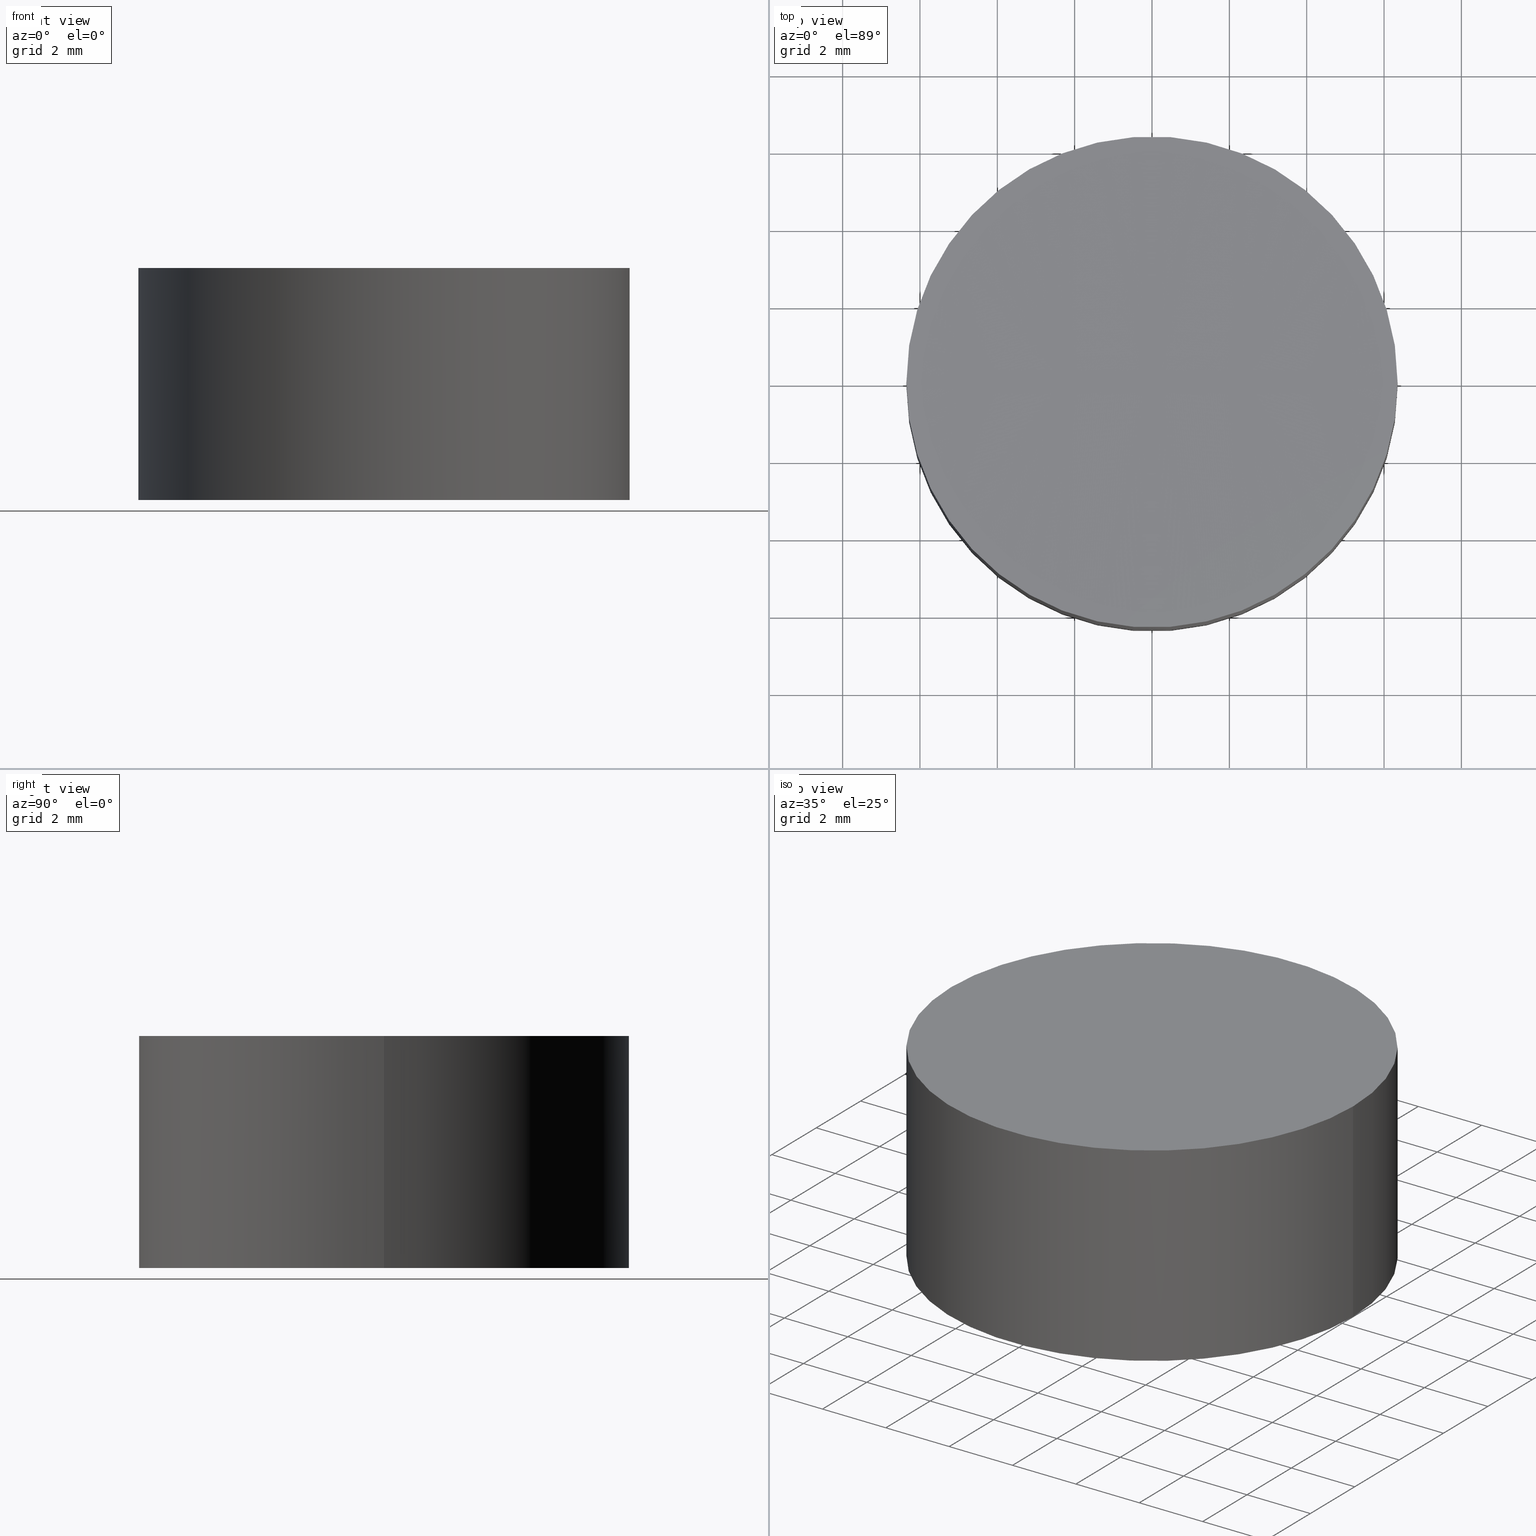
[diagram: canonical four-view strip — front | top / right | iso, engineering-drawing reading convention]
A machine part, canonical four-view strip (front | top / right | iso — engineering-drawing reading convention). The complete STEP part file that produces these views, byte-faithful:
ISO-10303-21;
HEADER;
FILE_DESCRIPTION (( 'STEP AP203' ),
    '1' );
FILE_NAME ('010-1140T6_UVFS_PCV_window.STEP',
    '2021-02-25T10:39:41',
    ( '' ),
    ( '' ),
    'SwSTEP 2.0',
    'SolidWorks 2019',
    '' );
FILE_SCHEMA (( 'CONFIG_CONTROL_DESIGN' ));
ENDSEC;

DATA;
#1 = CIRCLE ( 'NONE', #195, 6.349999999999999645 ) ;
#2 = CARTESIAN_POINT ( 'NONE',  ( -6.349999999883296553, 0.000000000000000000, 5.999999999999783284 ) ) ;
#3 = CARTESIAN_POINT ( 'NONE',  ( 0.000000000000000000, 0.000000000000000000, 6.000000000000000000 ) ) ;
#4 = CC_DESIGN_PERSON_AND_ORGANIZATION_ASSIGNMENT ( #125, #192, ( #82 ) ) ;
#5 = COORDINATED_UNIVERSAL_TIME_OFFSET ( 2, 0, .AHEAD. ) ;
#6 = CARTESIAN_POINT ( 'NONE',  ( 6.349999999999999645, 7.776507174585692163E-16, 6.000000000000000000 ) ) ;
#7 = APPROVAL_PERSON_ORGANIZATION ( #52, #109, #172 ) ;
#8 = APPROVAL_DATE_TIME ( #46, #29 ) ;
#9 = DIRECTION ( 'NONE',  ( 0.000000000000000000, 0.000000000000000000, 1.000000000000000000 ) ) ;
#10 = EDGE_CURVE ( 'NONE', #116, #66, #35, .T. ) ;
#11 = CIRCLE ( 'NONE', #165, 4000.000000000000000 ) ;
#12 = CC_DESIGN_DATE_AND_TIME_ASSIGNMENT ( #108, #193, ( #107 ) ) ;
#13 = ORIENTED_EDGE ( 'NONE', *, *, #95, .T. ) ;
#14 = CC_DESIGN_PERSON_AND_ORGANIZATION_ASSIGNMENT ( #139, #39, ( #107 ) ) ;
#15 = CC_DESIGN_APPROVAL ( #79, ( #183 ) ) ;
#16 = DIRECTION ( 'NONE',  ( -0.000000000000000000, -0.000000000000000000, -1.000000000000000000 ) ) ;
#17 = CIRCLE ( 'NONE', #44, 6.349999999883787716 ) ;
#18 = FACE_OUTER_BOUND ( 'NONE', #30, .T. ) ;
#19 = ADVANCED_FACE ( 'NONE', ( #34 ), #33, .T. ) ;
#20 = CALENDAR_DATE ( 2021, 25, 2 ) ;
#21 = CARTESIAN_POINT ( 'NONE',  ( 4.917941054394248113E-13, 0.000000000000000000, 4005.994959684324385 ) ) ;
#22 = APPROVAL_STATUS ( 'not_yet_approved' ) ;
#23 = DIRECTION ( 'NONE',  ( 1.000000000000000000, 0.000000000000000000, 0.000000000000000000 ) ) ;
#24 = CIRCLE ( 'NONE', #104, 6.349999999883787716 ) ;
#25 = DIRECTION ( 'NONE',  ( 1.000000000000000000, 0.000000000000000000, 0.000000000000000000 ) ) ;
#26 = COORDINATED_UNIVERSAL_TIME_OFFSET ( 2, 0, .AHEAD. ) ;
#27 = CC_DESIGN_PERSON_AND_ORGANIZATION_ASSIGNMENT ( #177, #141, ( #183 ) ) ;
#28 = PERSON_AND_ORGANIZATION ( #119, #70 ) ;
#29 = APPROVAL ( #143, 'UNSPECIFIED' ) ;
#30 = EDGE_LOOP ( 'NONE', ( #72, #48, #100 ) ) ;
#31 = VERTEX_POINT ( 'NONE', #126 ) ;
#32 = LOCAL_TIME ( 12, 39, 41.00000000000000000, #5 ) ;
#33 = CYLINDRICAL_SURFACE ( 'NONE', #86, 6.349999999999999645 ) ;
#34 = FACE_OUTER_BOUND ( 'NONE', #197, .T. ) ;
#35 = LINE ( 'NONE', #90, #137 ) ;
#36 = APPROVAL_DATE_TIME ( #80, #79 ) ;
#37 = CIRCLE ( 'NONE', #106, 4000.000000000000000 ) ;
#38 = SPHERICAL_SURFACE ( 'NONE', #176, 4000.000000000000000 ) ;
#39 = PERSON_AND_ORGANIZATION_ROLE ( 'creator' ) ;
#40 = DIRECTION ( 'NONE',  ( 0.000000000000000000, 0.000000000000000000, 1.000000000000000000 ) ) ;
#41 = PERSON_AND_ORGANIZATION_ROLE ( 'design_supplier' ) ;
#42 = APPLICATION_PROTOCOL_DEFINITION ( 'international standard', 'config_control_design', 1994, #71 ) ;
#43 = APPLICATION_PROTOCOL_DEFINITION ( 'international standard', 'config_control_design', 1994, #74 ) ;
#44 = AXIS2_PLACEMENT_3D ( 'NONE', #81, #114, #130 ) ;
#45 = CARTESIAN_POINT ( 'NONE',  ( 7.367234652688955115E-13, 0.000000000000000000, 5.994959684324285831 ) ) ;
#46 = DATE_AND_TIME ( #54, #133 ) ;
#47 = ORIENTED_EDGE ( 'NONE', *, *, #180, .F. ) ;
#48 = ORIENTED_EDGE ( 'NONE', *, *, #182, .F. ) ;
#49 = ORIENTED_EDGE ( 'NONE', *, *, #182, .T. ) ;
#50 = LINE ( 'NONE', #6, #148 ) ;
#51 = DIRECTION ( 'NONE',  ( 0.000000000000000000, 1.000000000000000000, -0.000000000000000000 ) ) ;
#52 = PERSON_AND_ORGANIZATION ( #119, #70 ) ;
#53 = DIRECTION ( 'NONE',  ( -0.000000000000000000, -0.000000000000000000, -1.000000000000000000 ) ) ;
#54 = CALENDAR_DATE ( 2021, 25, 2 ) ;
#55 = ORIENTED_EDGE ( 'NONE', *, *, #146, .T. ) ;
#56 =( NAMED_UNIT ( * ) SI_UNIT ( $, .STERADIAN. ) SOLID_ANGLE_UNIT ( ) );
#57 = APPROVAL_ROLE ( '' ) ;
#58 = ORIENTED_EDGE ( 'NONE', *, *, #131, .F. ) ;
#59 = ADVANCED_FACE ( 'NONE', ( #87 ), #152, .T. ) ;
#60 = CIRCLE ( 'NONE', #92, 6.349999999999999645 ) ;
#61 = PLANE ( 'NONE',  #76 ) ;
#62 = CC_DESIGN_SECURITY_CLASSIFICATION ( #183, ( #82 ) ) ;
#63 = AXIS2_PLACEMENT_3D ( 'NONE', #3, #157, #123 ) ;
#64 = DIRECTION ( 'NONE',  ( 0.000000000000000000, -1.000000000000000000, -0.000000000000000000 ) ) ;
#65 = DIRECTION ( 'NONE',  ( 1.000000000000000000, 1.224646799147353207E-16, 0.000000000000000000 ) ) ;
#66 = VERTEX_POINT ( 'NONE', #168 ) ;
#67 = EDGE_CURVE ( 'NONE', #66, #31, #60, .T. ) ;
#68 = COORDINATED_UNIVERSAL_TIME_OFFSET ( 2, 0, .AHEAD. ) ;
#69 = PERSON_AND_ORGANIZATION_ROLE ( 'design_owner' ) ;
#70 = ORGANIZATION ( 'UNSPECIFIED', 'UNSPECIFIED', '' ) ;
#71 = APPLICATION_CONTEXT ( 'configuration controlled 3d designs of mechanical parts and assemblies' ) ;
#72 = ORIENTED_EDGE ( 'NONE', *, *, #95, .F. ) ;
#73 = CARTESIAN_POINT ( 'NONE',  ( 0.000000000000000000, 0.000000000000000000, 0.000000000000000000 ) ) ;
#74 = APPLICATION_CONTEXT ( 'configuration controlled 3d designs of mechanical parts and assemblies' ) ;
#75 = CARTESIAN_POINT ( 'NONE',  ( 0.000000000000000000, 0.000000000000000000, 6.000000000000000000 ) ) ;
#76 = AXIS2_PLACEMENT_3D ( 'NONE', #173, #153, #140 ) ;
#77 = APPROVAL_ROLE ( '' ) ;
#78 = DIRECTION ( 'NONE',  ( -0.000000000000000000, -0.000000000000000000, -1.000000000000000000 ) ) ;
#79 = APPROVAL ( #22, 'UNSPECIFIED' ) ;
#80 = DATE_AND_TIME ( #97, #175 ) ;
#81 = CARTESIAN_POINT ( 'NONE',  ( 4.917941054394248113E-13, 0.000000000000000000, 5.999999999999783284 ) ) ;
#82 = PRODUCT_DEFINITION_FORMATION_WITH_SPECIFIED_SOURCE ( 'ANY', '', #103, .NOT_KNOWN. ) ;
#83 = DIRECTION ( 'NONE',  ( -0.000000000000000000, -0.000000000000000000, -1.000000000000000000 ) ) ;
#84 =( GEOMETRIC_REPRESENTATION_CONTEXT ( 3 ) GLOBAL_UNCERTAINTY_ASSIGNED_CONTEXT ( ( #129 ) ) GLOBAL_UNIT_ASSIGNED_CONTEXT ( ( #145, #174, #56 ) ) REPRESENTATION_CONTEXT ( 'NONE', 'WORKASPACE' ) );
#85 = ADVANCED_FACE ( 'NONE', ( #18 ), #38, .F. ) ;
#86 = AXIS2_PLACEMENT_3D ( 'NONE', #75, #78, #124 ) ;
#87 = FACE_OUTER_BOUND ( 'NONE', #196, .T. ) ;
#88 = ADVANCED_FACE ( 'NONE', ( #199 ), #94, .F. ) ;
#89 = DIRECTION ( 'NONE',  ( 0.000000000000000000, 0.000000000000000000, 1.000000000000000000 ) ) ;
#90 = CARTESIAN_POINT ( 'NONE',  ( -6.349999999999999645, 0.000000000000000000, 6.000000000000000000 ) ) ;
#91 = LOCAL_TIME ( 12, 39, 41.00000000000000000, #96 ) ;
#92 = AXIS2_PLACEMENT_3D ( 'NONE', #73, #135, #122 ) ;
#93 = ADVANCED_BREP_SHAPE_REPRESENTATION ( '010-1140T6_UVFS_PCV_window', ( #132, #154 ), #84 ) ;
#94 = SPHERICAL_SURFACE ( 'NONE', #198, 4000.000000000000000 ) ;
#95 = EDGE_CURVE ( 'NONE', #116, #181, #11, .T. ) ;
#96 = COORDINATED_UNIVERSAL_TIME_OFFSET ( 2, 0, .AHEAD. ) ;
#97 = CALENDAR_DATE ( 2021, 25, 2 ) ;
#98 = CARTESIAN_POINT ( 'NONE',  ( 4.917941054394248113E-13, 0.000000000000000000, 5.999999999999783284 ) ) ;
#99 = DATE_AND_TIME ( #156, #91 ) ;
#100 = ORIENTED_EDGE ( 'NONE', *, *, #131, .T. ) ;
#101 = ORIENTED_EDGE ( 'NONE', *, *, #67, .F. ) ;
#102 = CC_DESIGN_DATE_AND_TIME_ASSIGNMENT ( #99, #158, ( #183 ) ) ;
#103 = PRODUCT ( '010-1140T6_UVFS_PCV_window', '010-1140T6_UVFS_PCV_window', '', ( #162 ) ) ;
#104 = AXIS2_PLACEMENT_3D ( 'NONE', #98, #83, #23 ) ;
#105 = ORIENTED_EDGE ( 'NONE', *, *, #180, .T. ) ;
#106 = AXIS2_PLACEMENT_3D ( 'NONE', #184, #51, #89 ) ;
#107 = PRODUCT_DEFINITION ( 'UNKNOWN', '', #82, #147 ) ;
#108 = DATE_AND_TIME ( #127, #32 ) ;
#109 = APPROVAL ( #112, 'UNSPECIFIED' ) ;
#110 = CARTESIAN_POINT ( 'NONE',  ( 0.000000000000000000, 0.000000000000000000, 0.000000000000000000 ) ) ;
#111 = PERSON_AND_ORGANIZATION ( #119, #70 ) ;
#112 = APPROVAL_STATUS ( 'not_yet_approved' ) ;
#113 = SHAPE_DEFINITION_REPRESENTATION ( #200, #93 ) ;
#114 = DIRECTION ( 'NONE',  ( -0.000000000000000000, -0.000000000000000000, -1.000000000000000000 ) ) ;
#115 = APPROVAL_DATE_TIME ( #187, #109 ) ;
#116 = VERTEX_POINT ( 'NONE', #2 ) ;
#117 = PRODUCT_RELATED_PRODUCT_CATEGORY ( 'detail', '', ( #103 ) ) ;
#118 = CC_DESIGN_APPROVAL ( #109, ( #107 ) ) ;
#119 = PERSON ( 'UNSPECIFIED', 'UNSPECIFIED', 'UNSPECIFIED', ('UNSPECIFIED'), ('UNSPECIFIED'), ('UNSPECIFIED') ) ;
#120 = ADVANCED_FACE ( 'NONE', ( #138 ), #61, .F. ) ;
#121 = DIRECTION ( 'NONE',  ( 1.224646799147353207E-16, -1.000000000000000000, 0.000000000000000000 ) ) ;
#122 = DIRECTION ( 'NONE',  ( 1.000000000000000000, 0.000000000000000000, 0.000000000000000000 ) ) ;
#123 = DIRECTION ( 'NONE',  ( -1.000000000000000000, 0.000000000000000000, 0.000000000000000000 ) ) ;
#124 = DIRECTION ( 'NONE',  ( -1.000000000000000000, 0.000000000000000000, 0.000000000000000000 ) ) ;
#125 = PERSON_AND_ORGANIZATION ( #119, #70 ) ;
#126 = CARTESIAN_POINT ( 'NONE',  ( 6.349999999999999645, 7.776507174585692163E-16, 0.000000000000000000 ) ) ;
#127 = CALENDAR_DATE ( 2021, 25, 2 ) ;
#128 = CARTESIAN_POINT ( 'NONE',  ( 0.000000000000000000, 0.000000000000000000, 0.000000000000000000 ) ) ;
#129 = UNCERTAINTY_MEASURE_WITH_UNIT (LENGTH_MEASURE( 1.000000000000000082E-05 ), #145, 'distance_accuracy_value', 'NONE');
#130 = DIRECTION ( 'NONE',  ( 1.000000000000000000, 0.000000000000000000, 0.000000000000000000 ) ) ;
#131 = EDGE_CURVE ( 'NONE', #178, #181, #37, .T. ) ;
#132 = MANIFOLD_SOLID_BREP ( 'Cut-Revolve1', #166 ) ;
#133 = LOCAL_TIME ( 12, 39, 41.00000000000000000, #170 ) ;
#134 = EDGE_LOOP ( 'NONE', ( #47, #13, #58 ) ) ;
#135 = DIRECTION ( 'NONE',  ( 0.000000000000000000, 0.000000000000000000, 1.000000000000000000 ) ) ;
#136 = CARTESIAN_POINT ( 'NONE',  ( 4.917941054394248113E-13, 0.000000000000000000, 4005.994959684324385 ) ) ;
#137 = VECTOR ( 'NONE', #16, 1000.000000000000000 ) ;
#138 = FACE_OUTER_BOUND ( 'NONE', #155, .T. ) ;
#139 = PERSON_AND_ORGANIZATION ( #119, #70 ) ;
#140 = DIRECTION ( 'NONE',  ( 1.000000000000000000, 0.000000000000000000, -0.000000000000000000 ) ) ;
#141 = PERSON_AND_ORGANIZATION_ROLE ( 'classification_officer' ) ;
#142 = APPROVAL_PERSON_ORGANIZATION ( #189, #29, #77 ) ;
#143 = APPROVAL_STATUS ( 'not_yet_approved' ) ;
#144 = SECURITY_CLASSIFICATION_LEVEL ( 'unclassified' ) ;
#145 =( LENGTH_UNIT ( ) NAMED_UNIT ( * ) SI_UNIT ( .MILLI., .METRE. ) );
#146 = EDGE_CURVE ( 'NONE', #178, #31, #50, .T. ) ;
#147 = DESIGN_CONTEXT ( 'detailed design', #74, 'design' ) ;
#148 = VECTOR ( 'NONE', #53, 1000.000000000000000 ) ;
#149 = APPROVAL_PERSON_ORGANIZATION ( #28, #79, #57 ) ;
#150 = LOCAL_TIME ( 12, 39, 41.00000000000000000, #26 ) ;
#151 = EDGE_CURVE ( 'NONE', #31, #66, #1, .T. ) ;
#152 = CYLINDRICAL_SURFACE ( 'NONE', #63, 6.349999999999999645 ) ;
#153 = DIRECTION ( 'NONE',  ( 0.000000000000000000, 0.000000000000000000, 1.000000000000000000 ) ) ;
#154 = AXIS2_PLACEMENT_3D ( 'NONE', #128, #9, #25 ) ;
#155 = EDGE_LOOP ( 'NONE', ( #101, #167 ) ) ;
#156 = CALENDAR_DATE ( 2021, 25, 2 ) ;
#157 = DIRECTION ( 'NONE',  ( -0.000000000000000000, -0.000000000000000000, -1.000000000000000000 ) ) ;
#158 = DATE_TIME_ROLE ( 'classification_date' ) ;
#159 = DIRECTION ( 'NONE',  ( 1.000000000000000000, 0.000000000000000000, 0.000000000000000000 ) ) ;
#160 = PERSON_AND_ORGANIZATION ( #119, #70 ) ;
#161 = CC_DESIGN_APPROVAL ( #29, ( #82 ) ) ;
#162 = MECHANICAL_CONTEXT ( 'NONE', #71, 'mechanical' ) ;
#163 = ORIENTED_EDGE ( 'NONE', *, *, #10, .F. ) ;
#164 = ORIENTED_EDGE ( 'NONE', *, *, #146, .F. ) ;
#165 = AXIS2_PLACEMENT_3D ( 'NONE', #186, #121, #65 ) ;
#166 = CLOSED_SHELL ( 'NONE', ( #88, #59, #19, #120, #85 ) ) ;
#167 = ORIENTED_EDGE ( 'NONE', *, *, #151, .F. ) ;
#168 = CARTESIAN_POINT ( 'NONE',  ( -6.349999999999999645, 0.000000000000000000, 0.000000000000000000 ) ) ;
#169 = ORIENTED_EDGE ( 'NONE', *, *, #67, .T. ) ;
#170 = COORDINATED_UNIVERSAL_TIME_OFFSET ( 2, 0, .AHEAD. ) ;
#171 = DIRECTION ( 'NONE',  ( 1.000000000000000000, 0.000000000000000000, 0.000000000000000000 ) ) ;
#172 = APPROVAL_ROLE ( '' ) ;
#173 = CARTESIAN_POINT ( 'NONE',  ( 0.000000000000000000, 0.000000000000000000, 0.000000000000000000 ) ) ;
#174 =( NAMED_UNIT ( * ) PLANE_ANGLE_UNIT ( ) SI_UNIT ( $, .RADIAN. ) );
#175 = LOCAL_TIME ( 12, 39, 41.00000000000000000, #68 ) ;
#176 = AXIS2_PLACEMENT_3D ( 'NONE', #136, #201, #159 ) ;
#177 = PERSON_AND_ORGANIZATION ( #119, #70 ) ;
#178 = VERTEX_POINT ( 'NONE', #194 ) ;
#179 = ORIENTED_EDGE ( 'NONE', *, *, #10, .T. ) ;
#180 = EDGE_CURVE ( 'NONE', #116, #178, #24, .T. ) ;
#181 = VERTEX_POINT ( 'NONE', #45 ) ;
#182 = EDGE_CURVE ( 'NONE', #178, #116, #17, .T. ) ;
#183 = SECURITY_CLASSIFICATION ( '', '', #144 ) ;
#184 = CARTESIAN_POINT ( 'NONE',  ( 4.917941054394248113E-13, 0.000000000000000000, 4005.994959684324385 ) ) ;
#185 = CC_DESIGN_PERSON_AND_ORGANIZATION_ASSIGNMENT ( #160, #69, ( #103 ) ) ;
#186 = CARTESIAN_POINT ( 'NONE',  ( 4.917941054394248113E-13, 0.000000000000000000, 4005.994959684324385 ) ) ;
#187 = DATE_AND_TIME ( #20, #150 ) ;
#188 = ORIENTED_EDGE ( 'NONE', *, *, #151, .T. ) ;
#189 = PERSON_AND_ORGANIZATION ( #119, #70 ) ;
#190 = CC_DESIGN_PERSON_AND_ORGANIZATION_ASSIGNMENT ( #111, #41, ( #82 ) ) ;
#191 = DIRECTION ( 'NONE',  ( 1.000000000000000000, 0.000000000000000000, 0.000000000000000000 ) ) ;
#192 = PERSON_AND_ORGANIZATION_ROLE ( 'creator' ) ;
#193 = DATE_TIME_ROLE ( 'creation_date' ) ;
#194 = CARTESIAN_POINT ( 'NONE',  ( 6.349999999884279767, 7.776507174514834704E-16, 5.999999999999783284 ) ) ;
#195 = AXIS2_PLACEMENT_3D ( 'NONE', #110, #40, #191 ) ;
#196 = EDGE_LOOP ( 'NONE', ( #105, #55, #188, #163 ) ) ;
#197 = EDGE_LOOP ( 'NONE', ( #164, #49, #179, #169 ) ) ;
#198 = AXIS2_PLACEMENT_3D ( 'NONE', #21, #64, #171 ) ;
#199 = FACE_OUTER_BOUND ( 'NONE', #134, .T. ) ;
#200 = PRODUCT_DEFINITION_SHAPE ( 'NONE', 'NONE',  #107 ) ;
#201 = DIRECTION ( 'NONE',  ( 0.000000000000000000, -1.000000000000000000, -0.000000000000000000 ) ) ;
ENDSEC;
END-ISO-10303-21;
